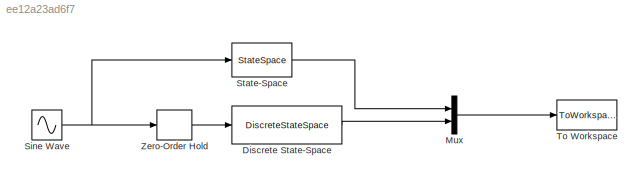
MODEL slx_ee12a23ad6f7
KIND model
CONFIG AbsTol = auto
CONFIG EnableMultiTasking = off
CONFIG FixedStep = 1e-2
CONFIG MaxStep = auto
CONFIG MinStep = auto
CONFIG RelTol = 1e-3
CONFIG SampleTimeConstraint = Unconstrained
CONFIG Solver = ode4
CONFIG SolverName = ode4
CONFIG StartTime = 0.0
CONFIG StopTime = 10.0
BLOCK [DiscreteStateSpace] Discrete State-Space
  A = A
  B = B
  C = C
  D = D
  InitialCondition = Start
  SampleTime = h
BLOCK [Mux] Mux
  DisplayOption = bar
  Inputs = 2
  Ports = [2, 1]
BLOCK [Sin] Sine Wave
  Ports = [0, 1]
  SampleTime = 0
BLOCK [StateSpace] State-Space
  A = A_c
  B = B_c
  C = C_c
  D = D_c
  InitialCondition = Start_c
  Ports = [1, 1]
BLOCK [ToWorkspace] To Workspace
  FixptAsFi = on
  MaxDataPoints = inf
  Ports = [1]
  SampleTime = 1e-2
  Save2DSignal = 3-D array (concatenate along third dimension)
  VariableName = x
BLOCK [ZeroOrderHold] Zero-Order Hold
  SampleTime = h
LINE Discrete State-Space:1 -> Mux:2
LINE Mux:1 -> To Workspace:1
NET Sine Wave:1 -> State-Space:1, Zero-Order Hold:1
LINE State-Space:1 -> Mux:1
LINE Zero-Order Hold:1 -> Discrete State-Space:1
note: NET lines group one-source signal fan-out (src -> all destinations, sorted); 1:1 wires keep LINE
